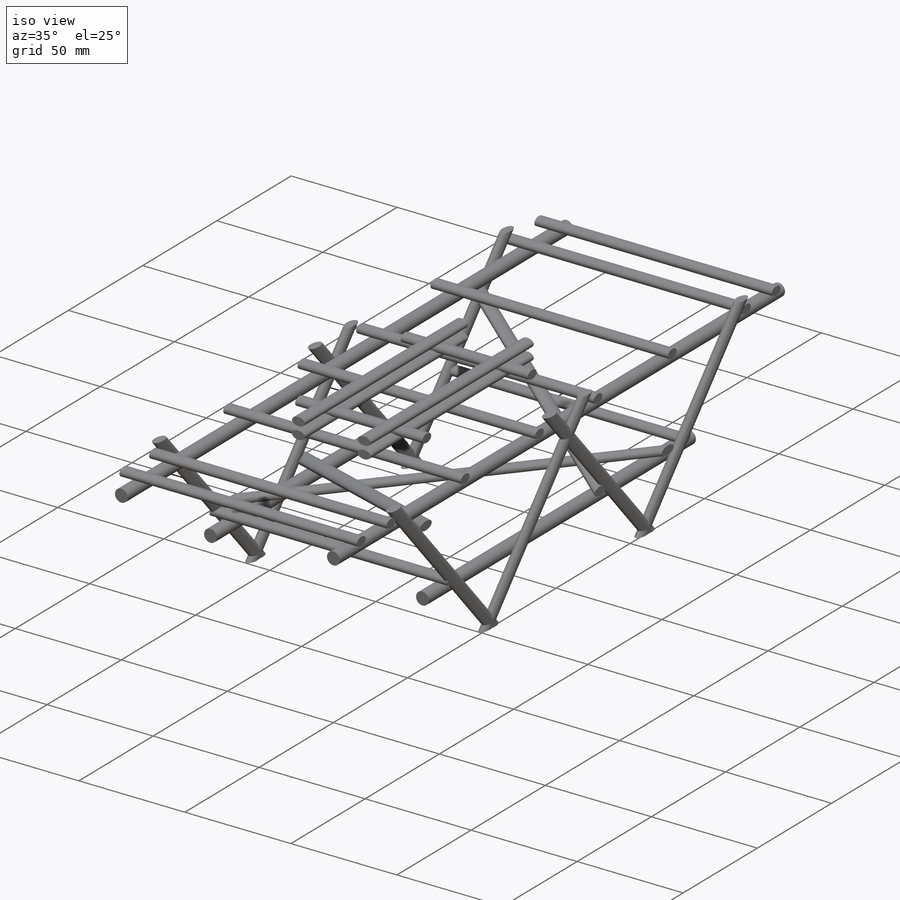
[diagram: iso view]
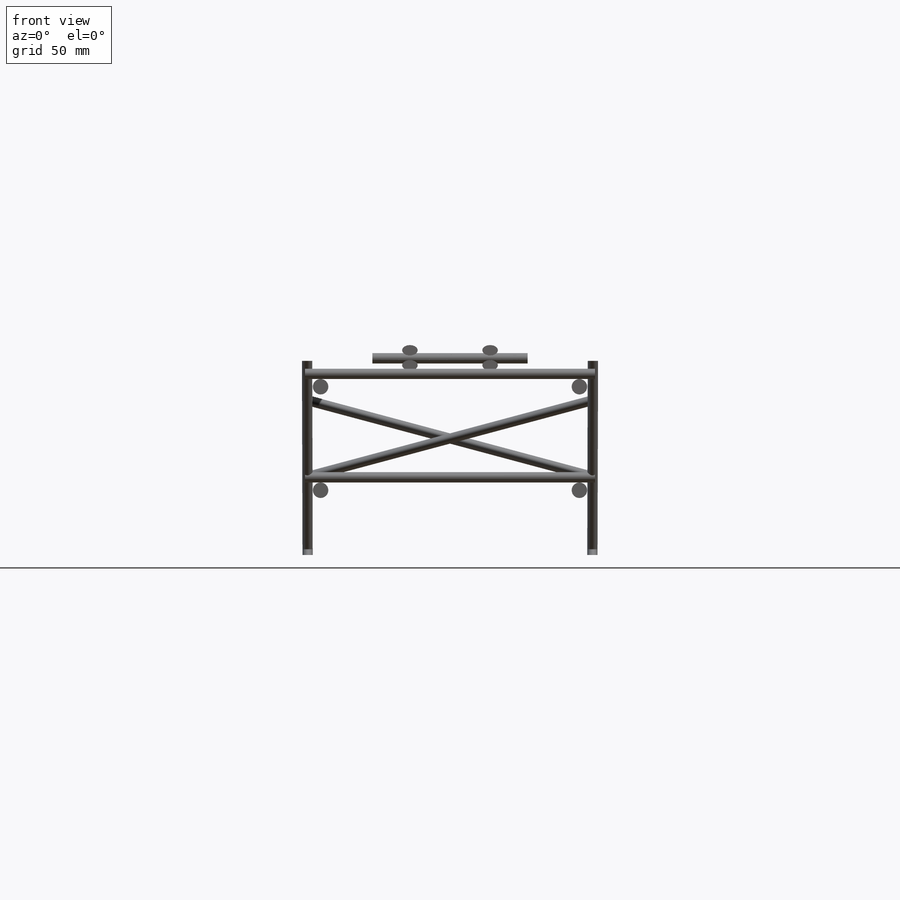
[diagram: front view]
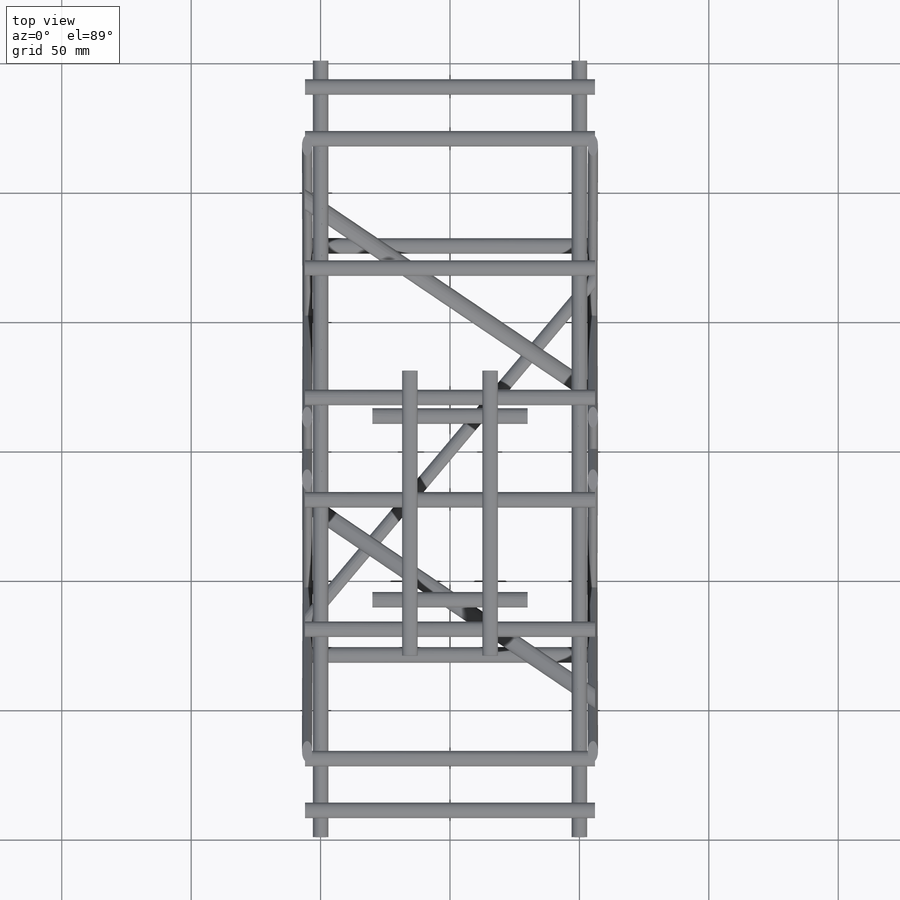
[diagram: top view]
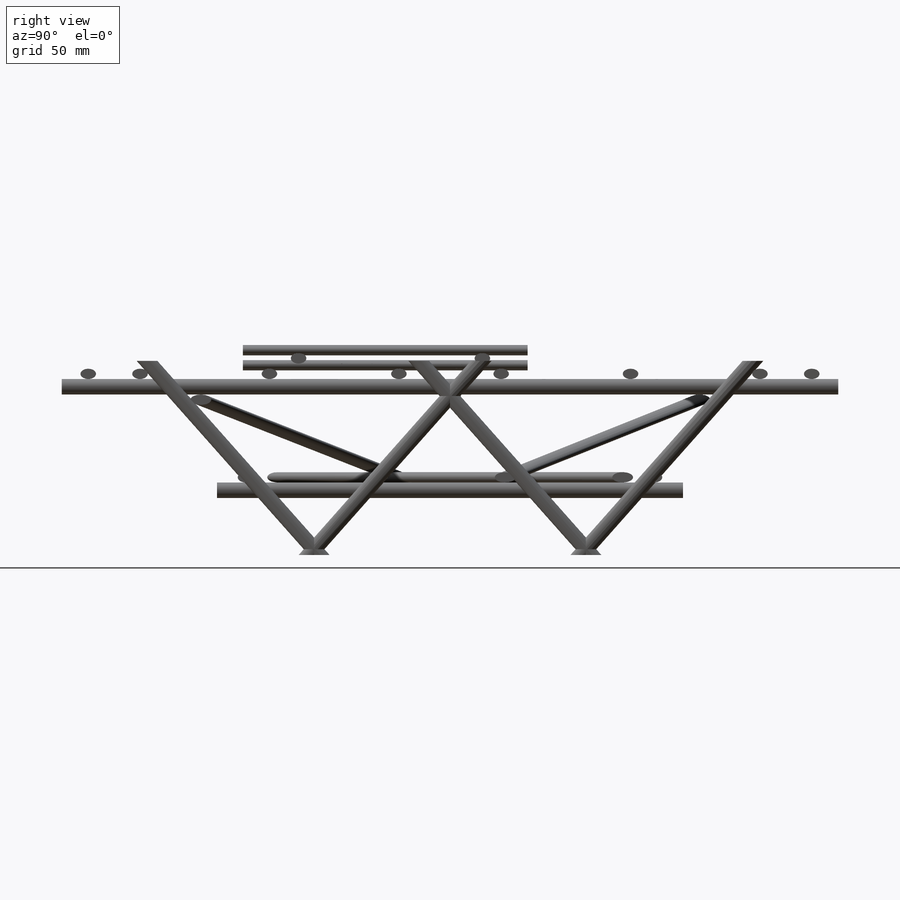
[diagram: right view]
SOLIDWORKS PART (.sldprt)
format: sldprt  version: not decoded by parser v0  size: 1,108,992 bytes
history: native  units: mm
features: sketch x21, plane x14, extrude x9, mirror x3, pattern_linear x2, material x1 (+9 scaffold rows collapsed)
feature tree (59):
  scaffold x9  (default folders/planes/origin — collapsed)
  material  "材质 <未指定>"
  plane  "前视基准面"
  plane  "上视基准面"
  plane  "右视基准面"
  sketch  "草图1"  dims[c1.D1=90.0mm c1.D2=52.5mm c1.D3=8.0mm c1.D4=40.0mm c1.D5=~69.705144mm c2.D5=~46.335315deg]
  sketch  "草图2"  dims[D1=6.0mm]
  extrude  "凸台-拉伸1"  Depth=90mm
  plane  "基准面1"
  sketch  "草图3"  dims[D1=6.0mm]
  extrude  "凸台-拉伸2"  Depth=150mm
  plane  "基准面2"  Offset=50mm
  plane  "基准面3"  Offset=25mm
  sketch  "草图7"
  sketch  "草图22"  dims[D1=4.0mm D2=2.0mm]
  sketch  "草图23"  dims[D1=4.0mm D2=2.0mm]
  sketch  "3D草图5"
  sketch  "草图10"  dims[D1=3.0mm D2=2.0mm]
  plane  "基准面4"
  plane  "基准面5"  Offset=6mm
  sketch  "草图8"  dims[D1=20.0mm D2=2.0mm D3=2.0mm D4=3.0mm]
  extrude  "凸台-拉伸3"  Depth=56mm
  pattern_linear  "阵列(线性)1"  Count1=3 Count2=1 Spacing1=50mm Spacing2=10mm
  pattern_linear  "阵列(线性)2"  Count1=2 Count2=1 Spacing1=120mm Spacing2=10mm
  plane  "基准面6"  Offset=6mm
  sketch  "草图9"  dims[D1=2.0mm D2=3.0mm]
  extrude  "凸台-拉伸4"  Depth=56mm
  plane  "基准面7"  Offset=50mm
  mirror  "镜向5"
  mirror  "镜向4"
  mirror  "镜向6"
  plane  "基准面8"  Offset=6mm
  sketch  "草图11"  dims[D1=2.0mm D2=4.0mm]
  plane  "基准面9"
  plane  "基准面10"  Offset=106mm
  sketch  "草图14"  dims[D1=2.0mm D2=4.0mm]
  extrude  "3D草图1"  [1 undecoded]
  sketch  "放样6"
  sketch  "草图15"  dims[D1=2.0mm D2=4.0mm]
  sketch  "草图16"  dims[D1=2.0mm D2=4.0mm]
  extrude  "3D草图2"  [1 undecoded]
  sketch  "放样7"
  sketch  "草图17"  dims[D1=2.0mm D2=4.0mm D3=4.0mm]
  sketch  "草图18"  dims[D1=2.0mm D2=4.0mm]
  extrude  "3D草图3"  [1 undecoded]
  sketch  "放样8"
  sketch  "草图19"  dims[c1.D1=12.5mm c1.D2=4.0mm c1.D3=2.0mm c1.D4=2.0mm c1.D5=3.0mm c2.D3=2.0mm c2.D4=3.0mm]
  extrude  "凸台-拉伸5"  Depth=60mm
  plane  "基准面11"  Offset=80mm
  sketch  "草图21"  dims[D1=15.5mm D2=3.0mm D3=2.0mm]
  extrude  "凸台-拉伸6"  Depth=110mm
decode coverage: 24 of 35 modeling features carry decoded parameters
note: ~ marks probable driven/reference dimensions
note: 3 parameter values undecoded
summary: no parameter record found for 3 features
note: suppression state not decoded; provenance and decode notes live in map.json
